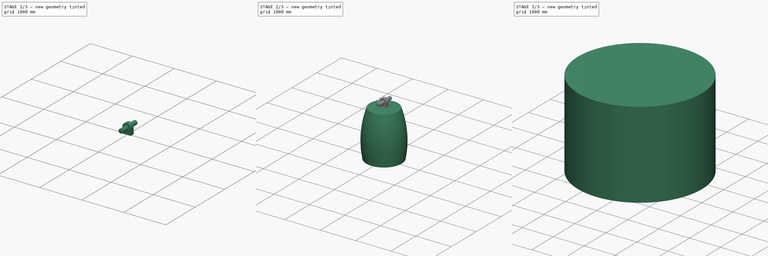
[diagram: build sequence overview — one tinted view per stage of 3, left to right]
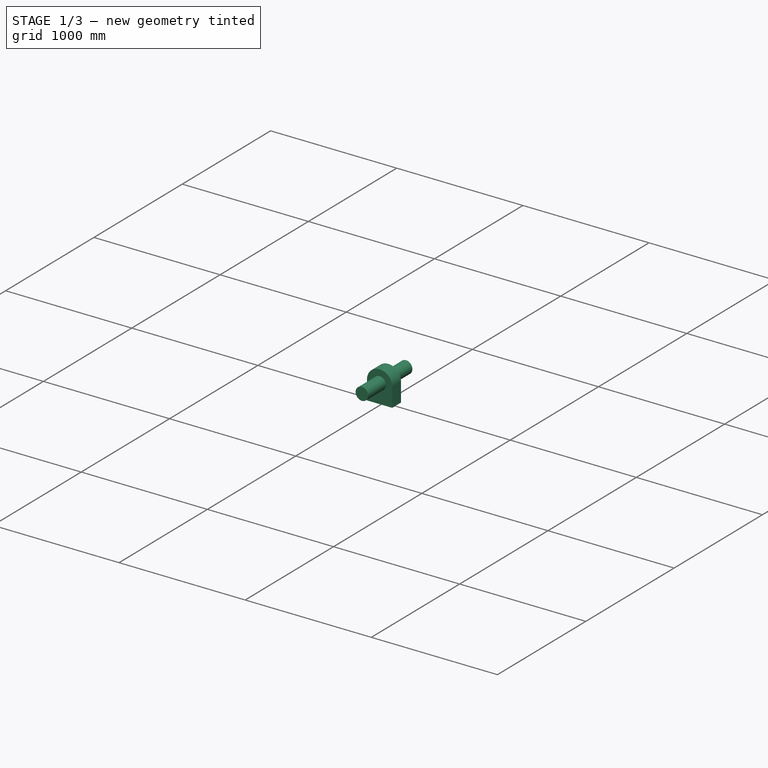
[diagram: stage 1 of 3 — iso view after this stage's code; geometry added in this stage tinted green]
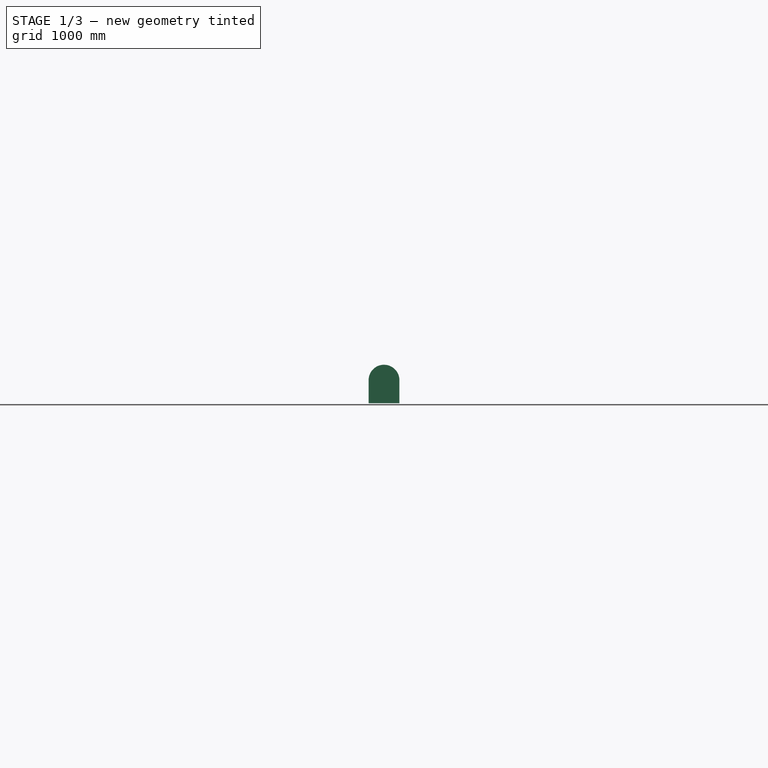
[diagram: stage 1 of 3 — front view after this stage's code; geometry added in this stage tinted green]
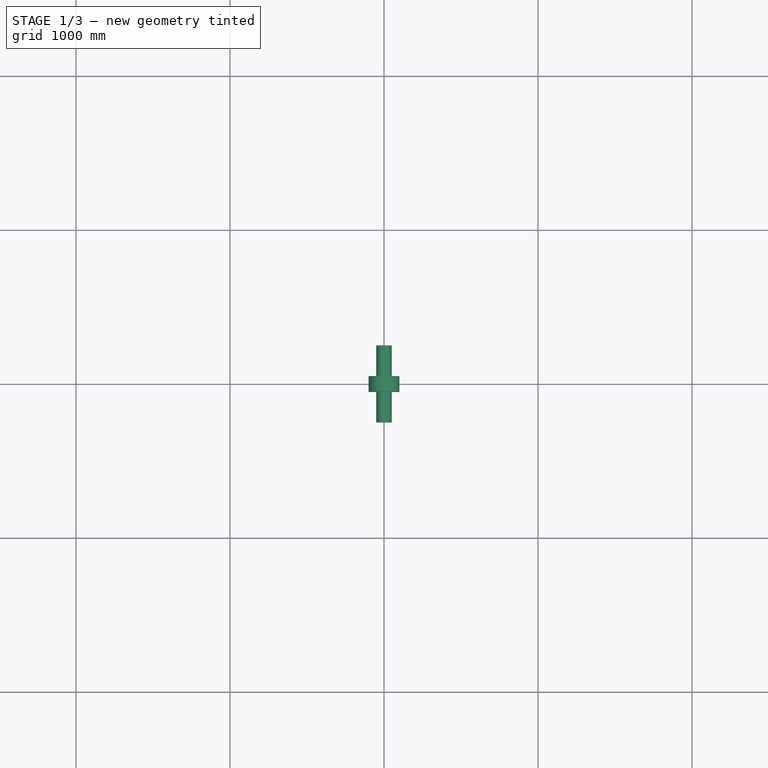
[diagram: stage 1 of 3 — top view after this stage's code; geometry added in this stage tinted green]
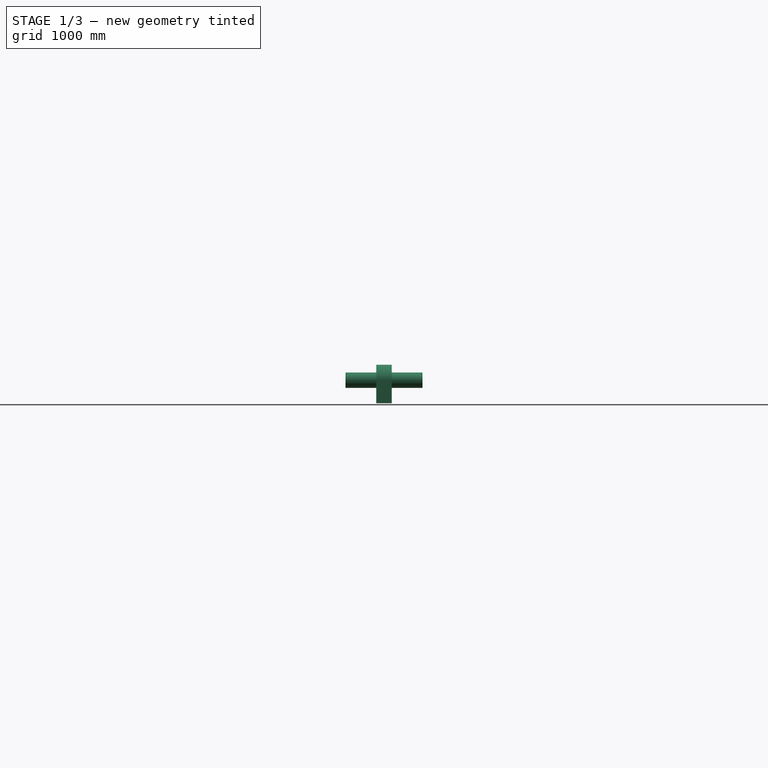
[diagram: stage 1 of 3 — right view after this stage's code; geometry added in this stage tinted green]
FCSTD DOCUMENT  (FreeCAD 0.16R)
Label: bell02
License: All rights reserved
LicenseURL: http://en.wikipedia.org/wiki/All_rights_reserved
objects: Sketcher::SketchObject×4, PartDesign::Revolution×2, PartDesign::Pad×2, Part::MultiFuse×1, Part::Cut×1
note: 14 computed .brp shape members not serialized (recipe doc carries the construction recipe); baked Part::Feature solids carry a one-line shape summary decoded from their .brp

FEATURE [Sketcher::SketchObject] Sketch001
  Placement = pos=(0,0,0) rot=(1,0,0;1.5708rad)
  sketch-geometry (6):
    g0: ArcOfCircle CenterX=0 CenterY=1450 CenterZ=0 NormalX=0 NormalY=0 NormalZ=1 Radius=100 StartAngle=6.28319 EndAngle=7.85398
    g1: LineSegment StartX=100 StartY=1450 StartZ=0 EndX=100 EndY=1300 EndZ=0
    g2: LineSegment StartX=100 StartY=1300 StartZ=0 EndX=0 EndY=1300 EndZ=0
    g3: ArcOfCircle CenterX=0 CenterY=1450 CenterZ=0 NormalX=0 NormalY=0 NormalZ=1 Radius=100 StartAngle=1.5708 EndAngle=3.14159
    g4: LineSegment StartX=-100 StartY=1450 StartZ=0 EndX=-100 EndY=1300 EndZ=0
    g5: LineSegment StartX=-100 StartY=1300 StartZ=0 EndX=0 EndY=1300 EndZ=0
  constraints (16):
    c: Coincident(g1,g0)
    c: Vertical(g1)
    c: Coincident(g2,g1)
    c: PointOnObject(g0,g-2)
    c: PointOnObject(g0,g-2)
    c: PointOnObject(g2,g-2)
    c: Tangent(g0,g1)
    c: DistanceX(g2,g1) = 100
    c: Horizontal(g2)
    c: DistanceY(g-1,g2) = 1300
    c: DistanceY(g2,g0) = 150
    c: Coincident(g4,g3)
    c: Vertical(g4)
    c: Coincident(g5,g4)
    c: Tangent(g3,g4)
    c: Horizontal(g5)
FEATURE [PartDesign::Pad] Pad
  Length = 100
  Length2 = 100
  Midplane = true
  Placement = pos=(0,0,0) rot=(1,0,0;1.5708rad)
  Sketch = -> Sketch001
  Type = 0
FEATURE [Sketcher::SketchObject] Sketch002
  Placement = pos=(0,0,0) rot=(1,0,0;1.5708rad)
  sketch-geometry (2):
    g0: ArcOfCircle CenterX=0 CenterY=1450 CenterZ=0 NormalX=0 NormalY=0 NormalZ=1 Radius=50 StartAngle=0.785398 EndAngle=2.35619
    g1: ArcOfCircle CenterX=0 CenterY=1450 CenterZ=0 NormalX=0 NormalY=0 NormalZ=1 Radius=50 StartAngle=2.35619 EndAngle=7.06858
  constraints (8):
    c: PointOnObject(g0,g-2)
    c: Coincident(g1,g0)
    c: Coincident(g1,g0)
    c: Coincident(g1,g0)
    c: Radius(g0) = 50
    c: DistanceY(g-1,g0) = 1450
    c: Angle(g-2,g0) = 2.35619
    c: Angle(g0,g-2) = 2.35619
FEATURE [PartDesign::Pad] Pad001
  Length = 500
  Length2 = 100
  Midplane = true
  Placement = pos=(0,0,0) rot=(1,0,0;1.5708rad)
  Sketch = -> Sketch002
  Type = 0
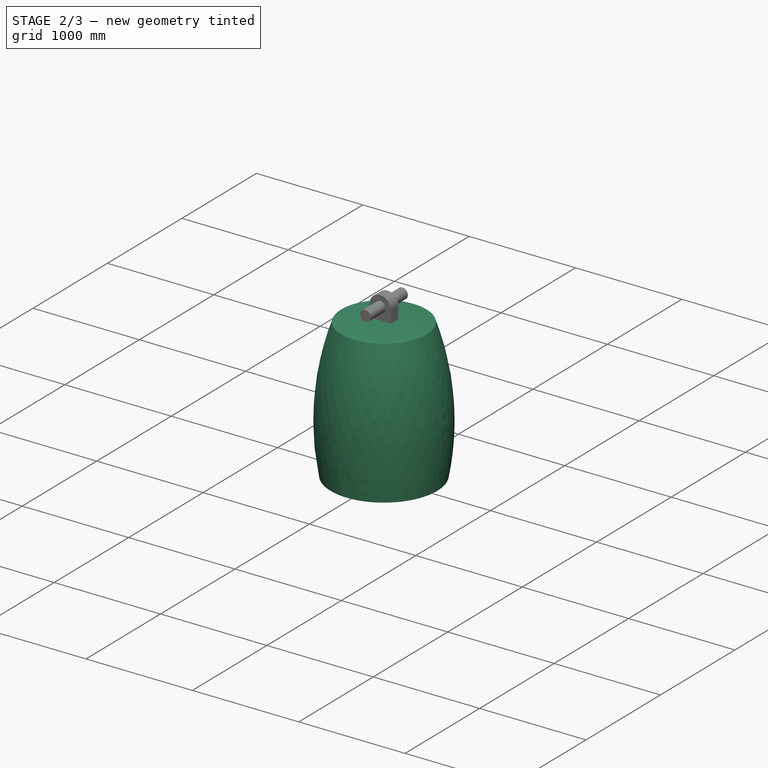
[diagram: stage 2 of 3 — iso view after this stage's code; geometry added in this stage tinted green]
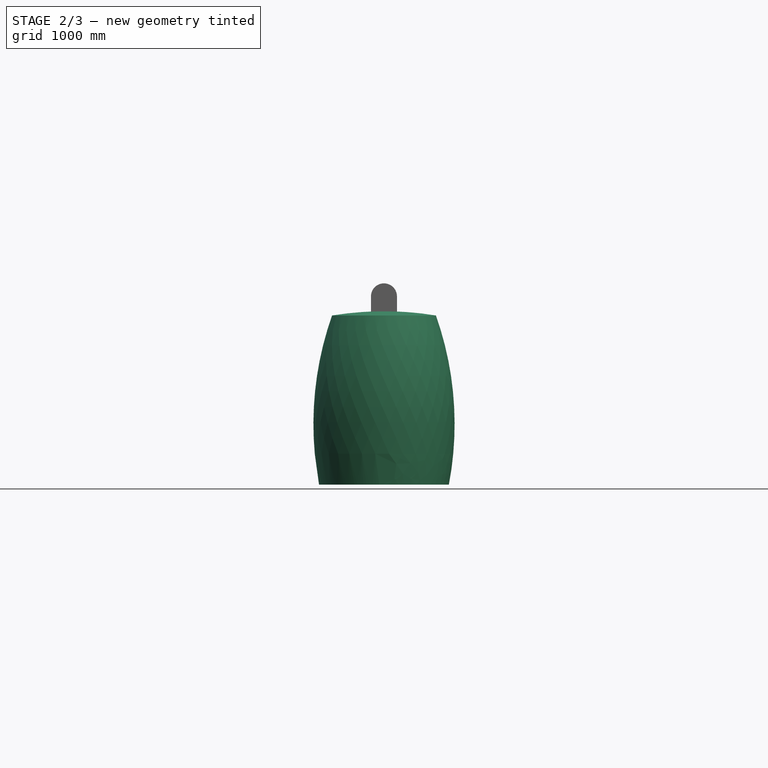
[diagram: stage 2 of 3 — front view after this stage's code; geometry added in this stage tinted green]
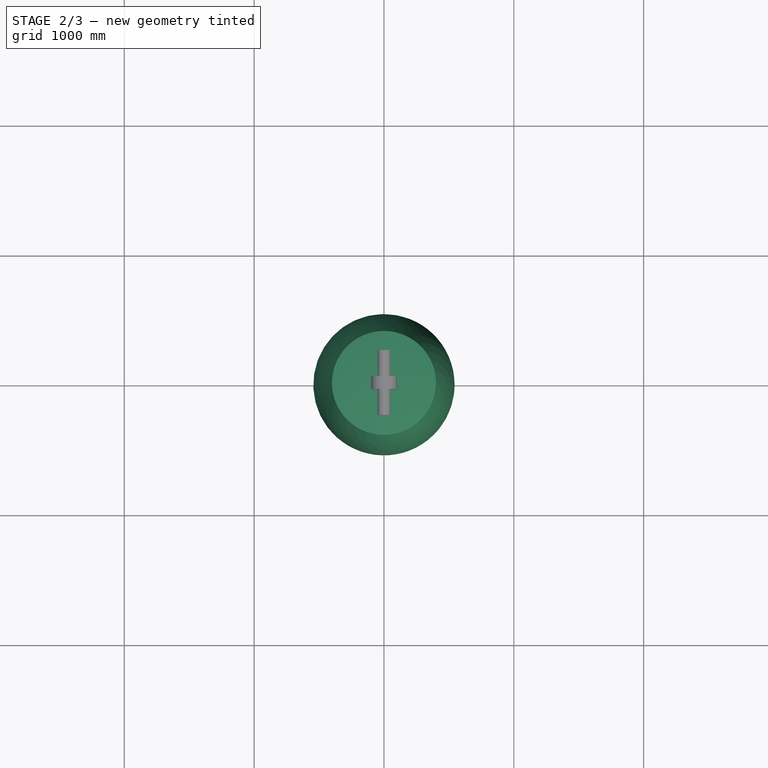
[diagram: stage 2 of 3 — top view after this stage's code; geometry added in this stage tinted green]
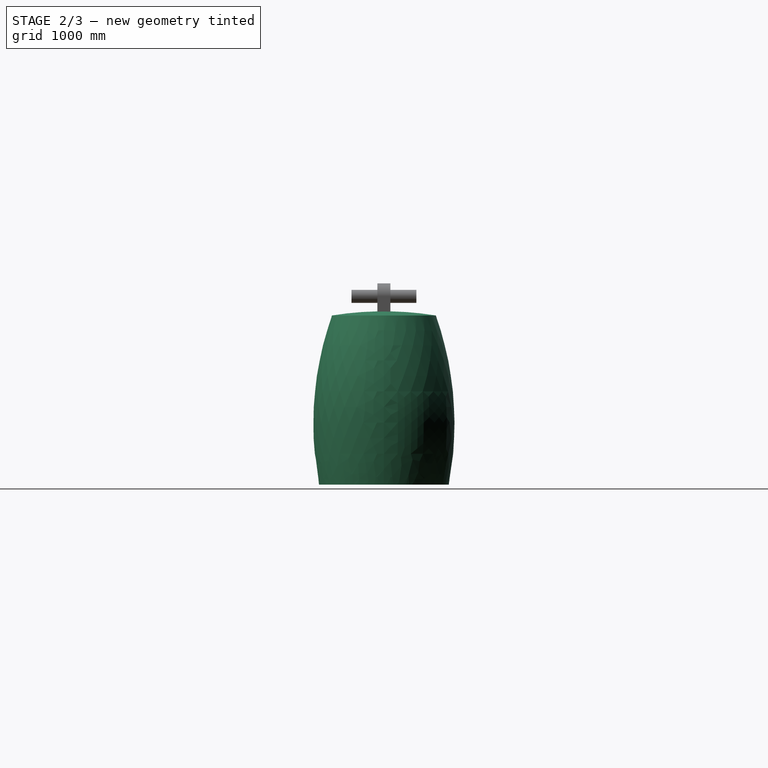
[diagram: stage 2 of 3 — right view after this stage's code; geometry added in this stage tinted green]
FEATURE [Sketcher::SketchObject] Sketch
  Placement = pos=(0,0,0) rot=(1,0,0;1.5708rad)
  sketch-geometry (6):
    g0: ArcOfCircle CenterX=0 CenterY=-2089.93 CenterZ=0 NormalX=0 NormalY=0 NormalZ=1 Radius=3374.93 StartAngle=1.45602 EndAngle=1.5708
    g1: ArcOfCircle CenterX=0 CenterY=-1165 CenterZ=0 NormalX=0 NormalY=0 NormalZ=1 Radius=2500 StartAngle=1.41011 EndAngle=1.5708
    g2: ArcOfCircle CenterX=-1686.29 CenterY=525.615 CenterZ=0 NormalX=0 NormalY=0 NormalZ=1 Radius=2200 StartAngle=6.04194 EndAngle=6.62488
    g3: ArcOfCircle CenterX=-1956.05 CenterY=466.712 CenterZ=0 NormalX=0 NormalY=0 NormalZ=1 Radius=2500 StartAngle=6.0954 EndAngle=6.62419
    g4: LineSegment StartX=500 StartY=1e-12 StartZ=0 EndX=450 EndY=1e-12 EndZ=0
    g5: LineSegment StartX=0 StartY=1335 StartZ=0 EndX=0 EndY=1285 EndZ=0
  constraints (22):
    c: Coincident(g2,g0)
    c: Coincident(g3,g1)
    c: PointOnObject(g1,g-2)
    c: PointOnObject(g0,g-2)
    c: PointOnObject(g0,g-2)
    c: PointOnObject(g1,g-2)
    c: Coincident(g4,g3)
    c: Horizontal(g4)
    c: Coincident(g2,g4)
    c: PointOnObject(g3,g-1)
    c: DistanceY(g-1,g1) = 1335
    c: DistanceY(g0,g1) = 50
    c: DistanceX(g4,g4) = 50
    c: DistanceX(g0,g1) = 13.472
    c: DistanceY(g0,g1) = 40
    c: DistanceX(g-1,g3) = 500
    c: DistanceX(g-1,g1) = 400
    c: Radius(g3) = 2500
    c: Radius(g2) = 2200
    c: Radius(g1) = 2500
    c: Coincident(g5,g0)
    c: Coincident(g1,g5)
FEATURE [PartDesign::Revolution] Revolution
  Angle = 360
  Axis = (0,0,1)
  Base = (0,0,0)
  Placement = pos=(0,0,0) rot=(1,0,0;1.5708rad)
  ReferenceAxis = -> Sketch [V_Axis]
  Sketch = -> Sketch
FEATURE [Part::MultiFuse] Fusion
  Shapes = -> [Revolution,Pad]
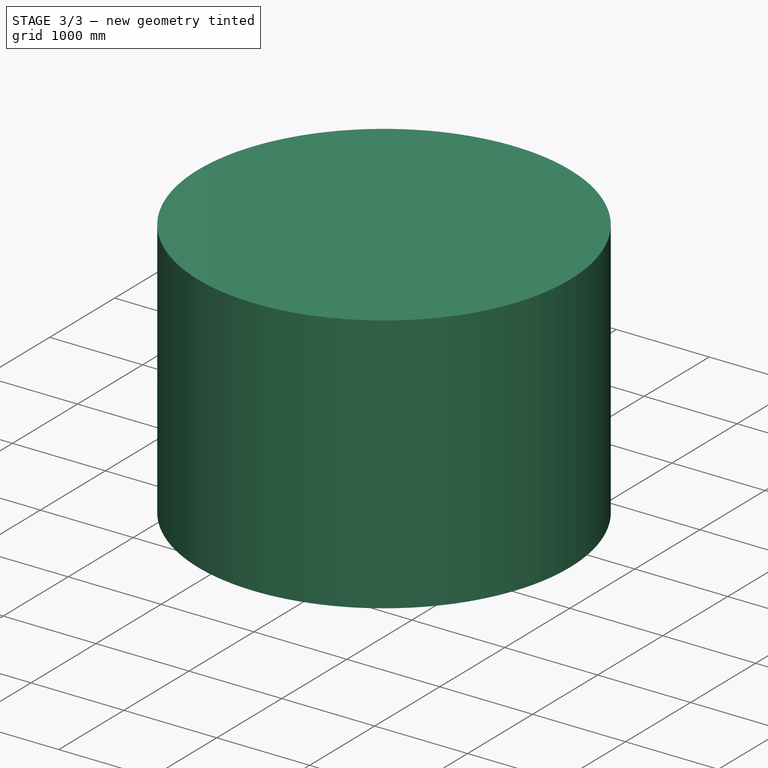
[diagram: stage 3 of 3 — iso view after this stage's code; geometry added in this stage tinted green]
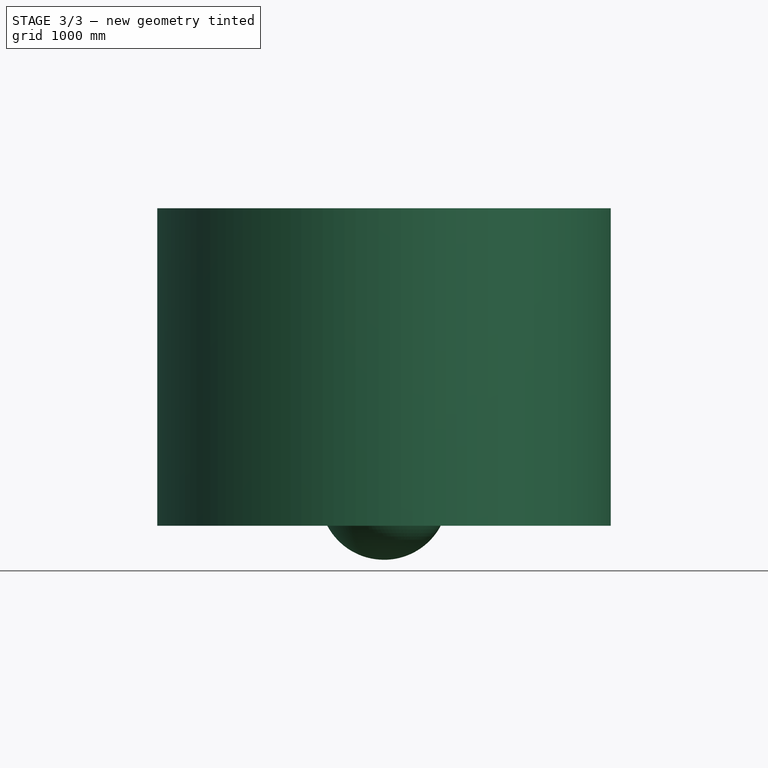
[diagram: stage 3 of 3 — front view after this stage's code; geometry added in this stage tinted green]
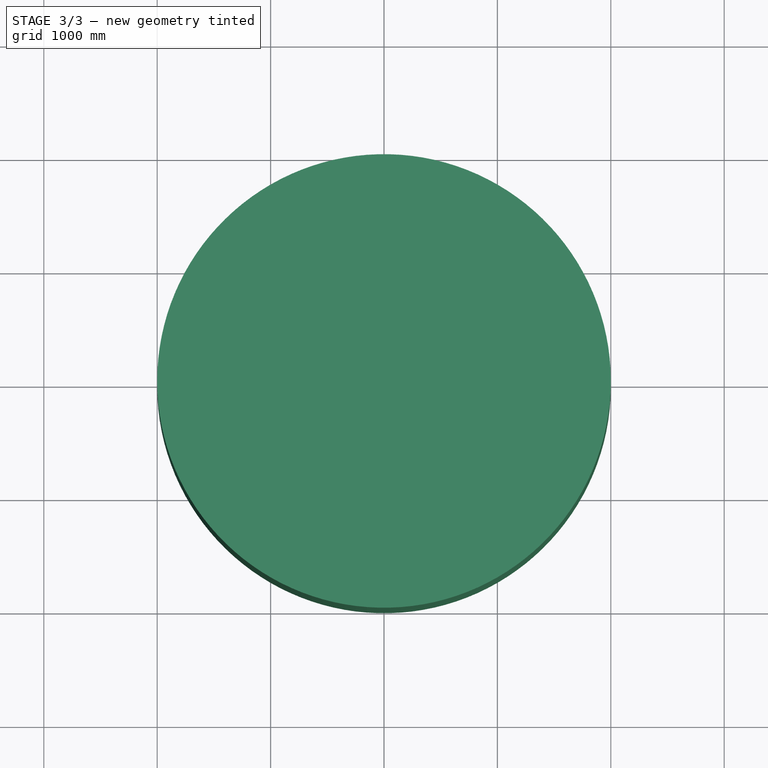
[diagram: stage 3 of 3 — top view after this stage's code; geometry added in this stage tinted green]
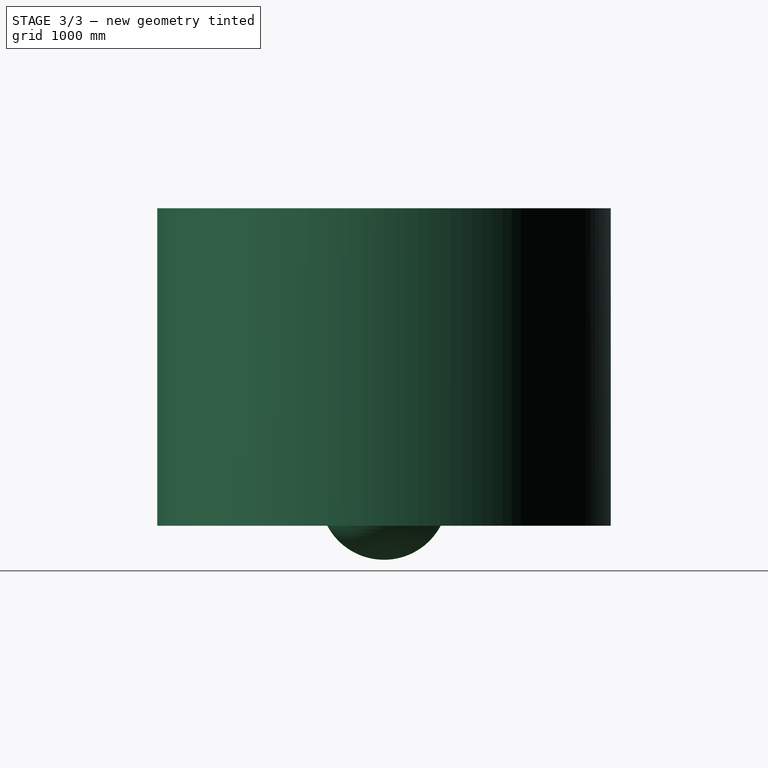
[diagram: stage 3 of 3 — right view after this stage's code; geometry added in this stage tinted green]
FEATURE [Sketcher::SketchObject] Sketch009
  Placement = pos=(0,0,0) rot=(1,0,0;1.5708rad)
  sketch-geometry (5):
    g0: LineSegment StartX=0 StartY=2500 StartZ=0 EndX=2000 EndY=2500 EndZ=0
    g1: LineSegment StartX=2000 StartY=2500 StartZ=0 EndX=2000 EndY=-300 EndZ=0
    g2: LineSegment StartX=0 StartY=-600 StartZ=0 EndX=0 EndY=2500 EndZ=0
    g3: ArcOfCircle CenterX=0 CenterY=-33.3333 CenterZ=0 NormalX=0 NormalY=0 NormalZ=1 Radius=566.667 StartAngle=4.71239 EndAngle=5.79323
    g4: LineSegment StartX=500 StartY=-300 StartZ=0 EndX=2000 EndY=-300 EndZ=0
  constraints (16):
    c: Coincident(g0,g1)
    c: Coincident(g2,g0)
    c: Horizontal(g0)
    c: Vertical(g1)
    c: Vertical(g2)
    c: Coincident(g4,g3)
    c: Coincident(g4,g1)
    c: Horizontal(g4)
    c: Coincident(g2,g3)
    c: PointOnObject(g3,g2)
    c: DistanceY(g-1,g0) = 2500
    c: DistanceY(g-1,g1) = -300
    c: Distance(g2,g4) = 300
    c: Distance(g3,g2) = 500
    c: PointOnObject(g0,g-2)
    c: Distance(g0) = 2000
FEATURE [PartDesign::Revolution] Revolution003  label="AIR"
  Angle = 360
  Axis = (0,0,1)
  Base = (0,0,0)
  Placement = pos=(0,0,0) rot=(1,0,0;1.5708rad)
  ReferenceAxis = -> Sketch009 [V_Axis]
  Reversed = true
  Sketch = -> Sketch009
FEATURE [Part::Cut] Cut  label="BELL02"
  Base = -> Fusion
  Tool = -> Pad001
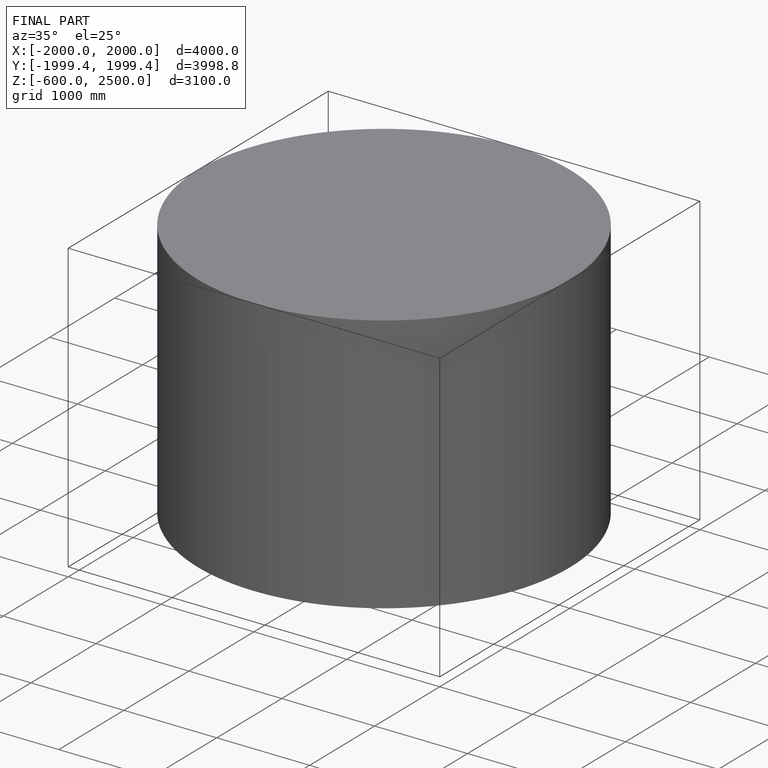
[diagram: finished part — iso view with bounding-box wireframe]
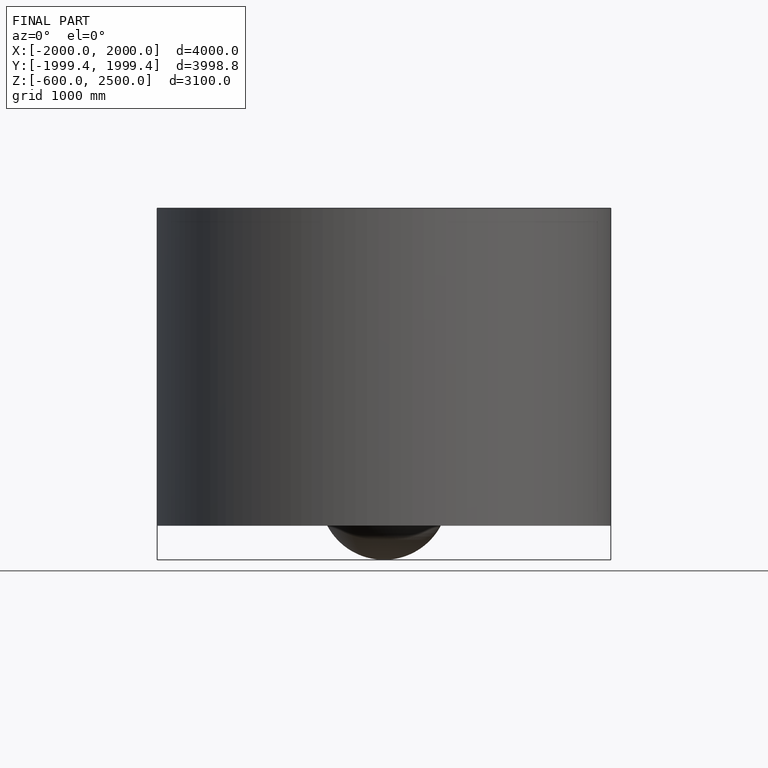
[diagram: finished part — front view with bounding-box wireframe]
